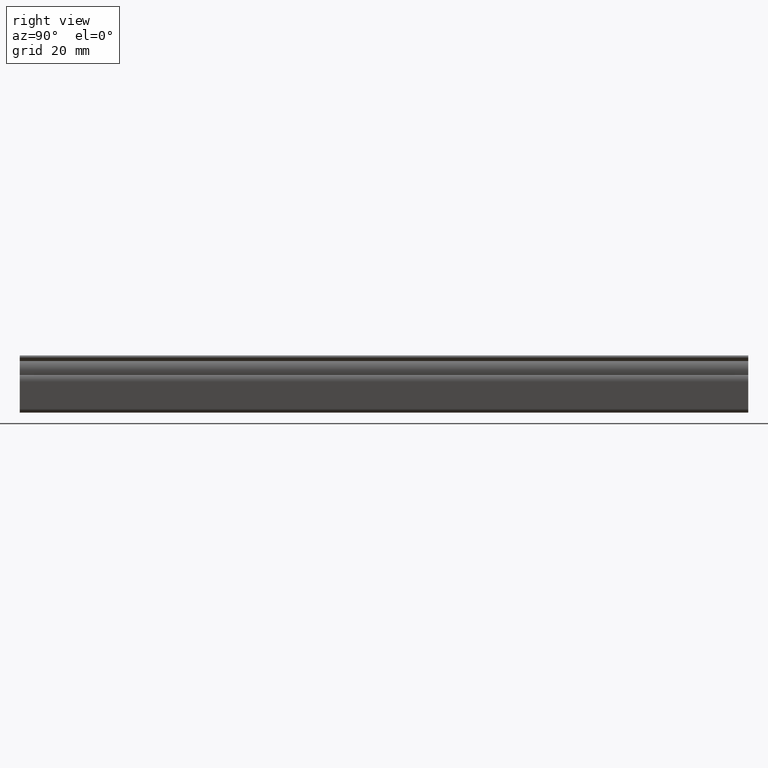
[diagram: clean part render]
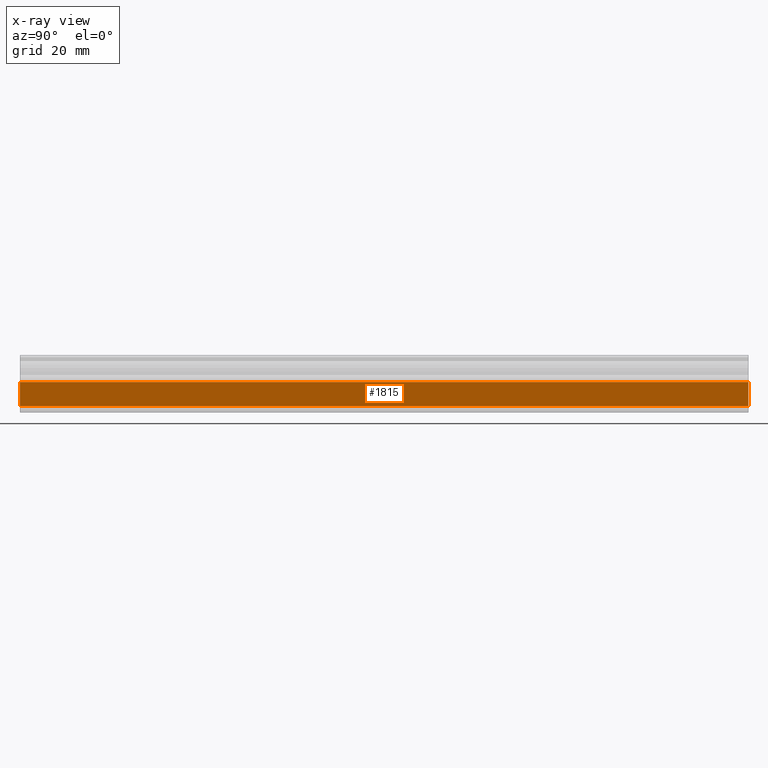
[diagram: x-ray — body ghosted, one internal face saturated and labeled with its STEP entity id]
A machine part, right view, then the same camera in x-ray: the body is ghosted and one INTERNAL B-rep face — a face not visible from any outside direction — is saturated and labeled: STEP entity #1815.
In plain terms, the highlighted face is a freeform B-spline surface patch.
Its self-contained STEP definition (entity closure, byte-faithful):
#1008=CARTESIAN_POINT('',(2.001231374227970,0.0,-13.975999215709100));
#1009=VERTEX_POINT('',#1008);
#1015=CARTESIAN_POINT('',(3.050639805371240,0.0,-7.350295144064080));
#1016=VERTEX_POINT('',#1015);
#1017=CARTESIAN_POINT('',(2.001231374227970,0.0,-13.975999215709100));
#1018=CARTESIAN_POINT('',(3.050639805371240,0.0,-7.350295144064080));
#1019=QUASI_UNIFORM_CURVE('',1,(#1017,#1018),.UNSPECIFIED.,.F.,.U.);
#1020=EDGE_CURVE('',#1009,#1016,#1019,.T.);
#1265=CARTESIAN_POINT('',(3.050639805371240,200.0,-7.350295144064080));
#1266=VERTEX_POINT('',#1265);
#1282=CARTESIAN_POINT('',(2.001231374227970,200.0,-13.975999215709100));
#1283=VERTEX_POINT('',#1282);
#1284=CARTESIAN_POINT('',(2.001231374227970,200.0,-13.975999215709100));
#1285=CARTESIAN_POINT('',(3.050639805371240,200.0,-7.350295144064080));
#1286=QUASI_UNIFORM_CURVE('',1,(#1284,#1285),.UNSPECIFIED.,.F.,.U.);
#1287=EDGE_CURVE('',#1283,#1266,#1286,.T.);
#1398=CARTESIAN_POINT('',(3.050639805371240,200.0,-7.350295144064080));
#1399=CARTESIAN_POINT('',(3.050639805371240,0.0,-7.350295144064080));
#1400=QUASI_UNIFORM_CURVE('',1,(#1398,#1399),.UNSPECIFIED.,.F.,.U.);
#1401=EDGE_CURVE('',#1266,#1016,#1400,.T.);
#1800=CARTESIAN_POINT('',(3.103057770425858,-9.989999612361194,-7.019341137804242));
#1801=CARTESIAN_POINT('',(1.948813474850434,-9.989999612361194,-14.306952807300060));
#1802=CARTESIAN_POINT('',(3.103057770425858,209.990004976779200,-7.019341137804242));
#1803=CARTESIAN_POINT('',(1.948813474850434,209.990004976779200,-14.306952807300060));
#1804=B_SPLINE_SURFACE_WITH_KNOTS('',1,1,((#1800,#1802),(#1801,#1803)),.UNSPECIFIED.,.F.,.F.,.U.,(2,2),(2,2),(0.0,7.378452665650164),(0.0,219.980004589140410),.UNSPECIFIED.);
#1805=ORIENTED_EDGE('',*,*,#1020,.F.);
#1806=CARTESIAN_POINT('',(2.001231374227970,200.0,-13.975999215709100));
#1807=CARTESIAN_POINT('',(2.001231374227970,0.0,-13.975999215709100));
#1808=QUASI_UNIFORM_CURVE('',1,(#1806,#1807),.UNSPECIFIED.,.F.,.U.);
#1809=EDGE_CURVE('',#1283,#1009,#1808,.T.);
#1810=ORIENTED_EDGE('',*,*,#1809,.F.);
#1811=ORIENTED_EDGE('',*,*,#1287,.T.);
#1812=ORIENTED_EDGE('',*,*,#1401,.T.);
#1813=EDGE_LOOP('',(#1805,#1810,#1811,#1812));
#1814=FACE_OUTER_BOUND('',#1813,.T.);
#1815=ADVANCED_FACE('',(#1814),#1804,.T.);